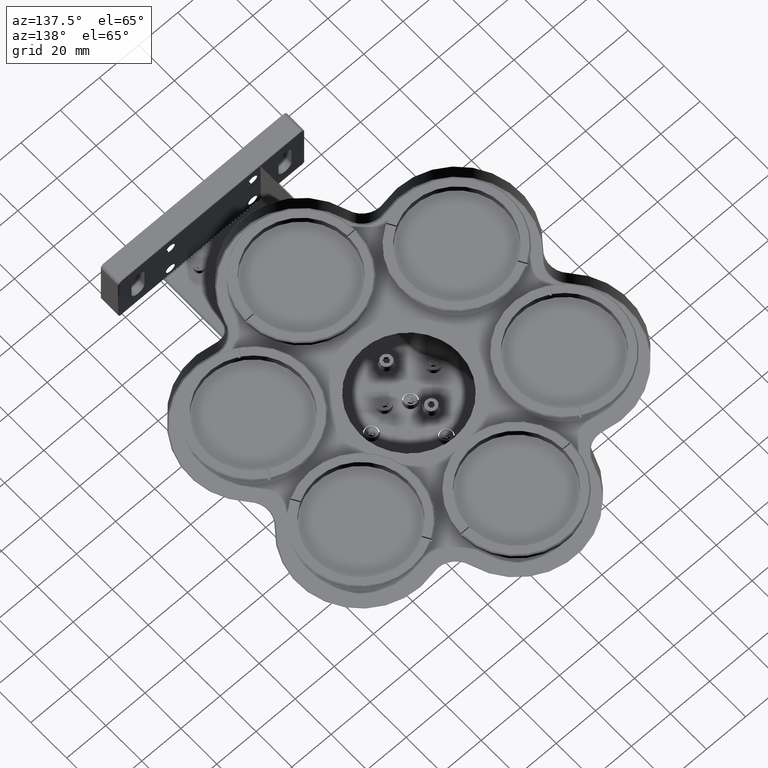
[diagram: clean part render]
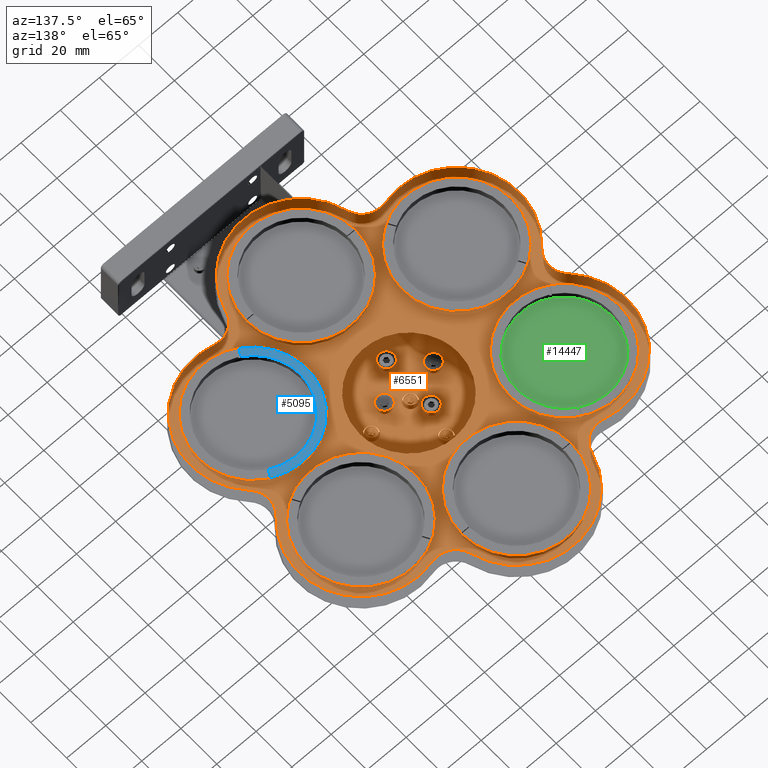
[diagram: same view with three faces highlighted in distinct colors, each labeled with its STEP entity id]
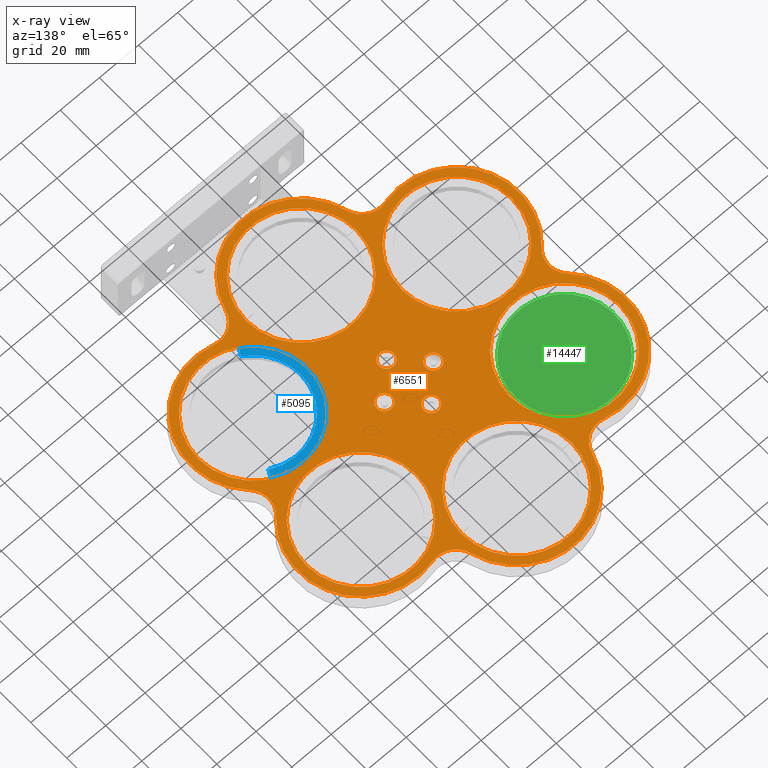
[diagram: x-ray of the same camera — body ghosted, the three highlighted faces saturated]
A machine part, auxiliary view with three faces highlighted in distinct colors.
The next image is the same camera in x-ray (body ghosted, the three faces saturated) — at least one of them is partly hidden behind the body in this view.
Their STEP definitions:

[orange] entity #6551 — the highlighted planar face has unit normal (0, 0, 1).
#42 = AXIS2_PLACEMENT_3D ( 'NONE', #10895, #4318, #2111 ) ;
#51 = CARTESIAN_POINT ( 'NONE',  ( -12.98181641387896867, 69.63146635550474173, 180.7499999999656666 ) ) ;
#234 = DIRECTION ( 'NONE',  ( -1.000000000000000000, 0.000000000000000000, 0.000000000000000000 ) ) ;
#235 = CIRCLE ( 'NONE', #2576, 32.00000000000002842 ) ;
#240 = ORIENTED_EDGE ( 'NONE', *, *, #9687, .F. ) ;
#310 = DIRECTION ( 'NONE',  ( 0.000000000000000000, 0.000000000000000000, -1.000000000000000000 ) ) ;
#457 = AXIS2_PLACEMENT_3D ( 'NONE', #7086, #11518, #11446 ) ;
#485 = VERTEX_POINT ( 'NONE', #625 ) ;
#549 = ORIENTED_EDGE ( 'NONE', *, *, #5991, .F. ) ;
#601 = CIRCLE ( 'NONE', #6709, 28.00000000000004619 ) ;
#625 = CARTESIAN_POINT ( 'NONE',  ( -0.4818164138221253667, 57.13146635550474173, 180.7500000000338787 ) ) ;
#692 = ORIENTED_EDGE ( 'NONE', *, *, #2051, .T. ) ;
#704 = ORIENTED_EDGE ( 'NONE', *, *, #8150, .F. ) ;
#722 = FACE_BOUND ( 'NONE', #5979, .T. ) ;
#748 = ORIENTED_EDGE ( 'NONE', *, *, #1298, .F. ) ;
#891 = EDGE_CURVE ( 'NONE', #12477, #3266, #12980, .T. ) ;
#909 = VERTEX_POINT ( 'NONE', #2414 ) ;
#953 = CIRCLE ( 'NONE', #6555, 3.749999999968167685 ) ;
#970 = AXIS2_PLACEMENT_3D ( 'NONE', #1318, #10306, #11188 ) ;
#1135 = VERTEX_POINT ( 'NONE', #11921 ) ;
#1165 = AXIS2_PLACEMENT_3D ( 'NONE', #10699, #13934, #6259 ) ;
#1211 = FACE_BOUND ( 'NONE', #2748, .T. ) ;
#1298 = EDGE_CURVE ( 'NONE', #5714, #5714, #3747, .T. ) ;
#1318 = CARTESIAN_POINT ( 'NONE',  ( -86.29732708789410367, 69.63146635550559438, 180.7499999999716351 ) ) ;
#1566 = EDGE_LOOP ( 'NONE', ( #11890 ) ) ;
#1741 = EDGE_LOOP ( 'NONE', ( #10160, #7980, #692, #5815, #1925, #3473, #3703, #549, #5237, #704, #6818, #7447 ) ) ;
#1824 = EDGE_CURVE ( 'NONE', #14439, #8394, #235, .T. ) ;
#1882 = CARTESIAN_POINT ( 'NONE',  ( -78.85987161275778590, 62.21970164962317540, 180.7499999999716351 ) ) ;
#1925 = ORIENTED_EDGE ( 'NONE', *, *, #1824, .T. ) ;
#2037 = FACE_BOUND ( 'NONE', #4427, .T. ) ;
#2051 = EDGE_CURVE ( 'NONE', #909, #6096, #13153, .T. ) ;
#2111 = DIRECTION ( 'NONE',  ( -1.000000000000000000, 0.000000000000000000, 0.000000000000000000 ) ) ;
#2117 = AXIS2_PLACEMENT_3D ( 'NONE', #6708, #2146, #13419 ) ;
#2146 = DIRECTION ( 'NONE',  ( -0.000000000000000000, 0.000000000000000000, -1.000000000000000000 ) ) ;
#2315 = VERTEX_POINT ( 'NONE', #13675 ) ;
#2355 = DIRECTION ( 'NONE',  ( -0.000000000000000000, 0.000000000000000000, -1.000000000000000000 ) ) ;
#2391 = DIRECTION ( 'NONE',  ( 1.000000000000000000, 0.000000000000000000, 0.000000000000000000 ) ) ;
#2414 = CARTESIAN_POINT ( 'NONE',  ( 39.50098770777523072, 130.5553756398474263, 180.7499999999716636 ) ) ;
#2485 = DIRECTION ( 'NONE',  ( -1.000000000000000000, 0.000000000000000000, 0.000000000000000000 ) ) ;
#2498 = DIRECTION ( 'NONE',  ( 1.000000000000000000, 0.000000000000000000, 0.000000000000000000 ) ) ;
#2516 = DIRECTION ( 'NONE',  ( 0.000000000000000000, 0.000000000000000000, -1.000000000000000000 ) ) ;
#2551 = CARTESIAN_POINT ( 'NONE',  ( -56.19334064091373193, 39.63146635550522490, 180.7499999999716351 ) ) ;
#2576 = AXIS2_PLACEMENT_3D ( 'NONE', #11379, #2516, #13509 ) ;
#2609 = VERTEX_POINT ( 'NONE', #11618 ) ;
#2742 = EDGE_CURVE ( 'NONE', #10146, #10146, #9887, .T. ) ;
#2748 = EDGE_LOOP ( 'NONE', ( #14375 ) ) ;
#2760 = VERTEX_POINT ( 'NONE', #8228 ) ;
#2795 = DIRECTION ( 'NONE',  ( -1.000000000000000000, 0.000000000000000000, 0.000000000000000000 ) ) ;
#2859 = DIRECTION ( 'NONE',  ( 1.000000000000000000, 1.321694076934714149E-15, 0.000000000000000000 ) ) ;
#2925 = FACE_BOUND ( 'NONE', #13767, .T. ) ;
#2995 = CARTESIAN_POINT ( 'NONE',  ( 26.66343466344120472, 137.9671403457298027, 180.7499999999716636 ) ) ;
#3052 = AXIS2_PLACEMENT_3D ( 'NONE', #8134, #12775, #13589 ) ;
#3265 = CIRCLE ( 'NONE', #4445, 3.750000000025011104 ) ;
#3266 = VERTEX_POINT ( 'NONE', #1882 ) ;
#3314 = EDGE_CURVE ( 'NONE', #12420, #12420, #953, .T. ) ;
#3323 = VERTEX_POINT ( 'NONE', #6380 ) ;
#3352 = DIRECTION ( 'NONE',  ( -0.000000000000000000, 0.000000000000000000, -1.000000000000000000 ) ) ;
#3429 = ORIENTED_EDGE ( 'NONE', *, *, #6638, .F. ) ;
#3473 = ORIENTED_EDGE ( 'NONE', *, *, #4516, .F. ) ;
#3703 = ORIENTED_EDGE ( 'NONE', *, *, #9426, .T. ) ;
#3714 = CARTESIAN_POINT ( 'NONE',  ( -28.19334064091308534, 99.63146635550535279, 180.7499999999716351 ) ) ;
#3747 = CIRCLE ( 'NONE', #11990, 28.00000000000001776 ) ;
#4090 = EDGE_CURVE ( 'NONE', #2315, #2315, #7760, .T. ) ;
#4171 = FACE_BOUND ( 'NONE', #1566, .T. ) ;
#4239 = CARTESIAN_POINT ( 'NONE',  ( -56.19334064091309955, 99.63146635550535279, 180.7499999999716351 ) ) ;
#4296 = VERTEX_POINT ( 'NONE', #8651 ) ;
#4318 = DIRECTION ( 'NONE',  ( 0.000000000000000000, 0.000000000000000000, -1.000000000000000000 ) ) ;
#4374 = EDGE_CURVE ( 'NONE', #1135, #10015, #8952, .T. ) ;
#4427 = EDGE_LOOP ( 'NONE', ( #5207 ) ) ;
#4445 = AXIS2_PLACEMENT_3D ( 'NONE', #11505, #2355, #2498 ) ;
#4516 = EDGE_CURVE ( 'NONE', #3323, #8394, #6581, .T. ) ;
#4657 = CARTESIAN_POINT ( 'NONE',  ( 23.76818358615290805, 9.631466355504741728, 180.7499999999716351 ) ) ;
#4673 = AXIS2_PLACEMENT_3D ( 'NONE', #5025, #12895, #2795 ) ;
#4814 = AXIS2_PLACEMENT_3D ( 'NONE', #11810, #9737, #8412 ) ;
#4936 = CARTESIAN_POINT ( 'NONE',  ( 39.50098770777513124, 8.707557071161664553, 180.7499999999716067 ) ) ;
#4977 = CIRCLE ( 'NONE', #970, 10.49999999999996803 ) ;
#4979 = CARTESIAN_POINT ( 'NONE',  ( 12.01818358617787474, 69.63146635550474173, 180.7500000000452474 ) ) ;
#5003 = ORIENTED_EDGE ( 'NONE', *, *, #7778, .F. ) ;
#5025 = CARTESIAN_POINT ( 'NONE',  ( -4.231816413847136360, 129.6314663555047275, 180.7499999999716351 ) ) ;
#5147 = DIRECTION ( 'NONE',  ( -0.000000000000000000, 0.000000000000000000, -1.000000000000000000 ) ) ;
#5207 = ORIENTED_EDGE ( 'NONE', *, *, #14169, .F. ) ;
#5215 = DIRECTION ( 'NONE',  ( 0.000000000000000000, 0.000000000000000000, 1.000000000000000000 ) ) ;
#5237 = ORIENTED_EDGE ( 'NONE', *, *, #891, .T. ) ;
#5386 = CIRCLE ( 'NONE', #4673, 32.00000000000003553 ) ;
#5409 = ORIENTED_EDGE ( 'NONE', *, *, #4090, .F. ) ;
#5435 = CARTESIAN_POINT ( 'NONE',  ( -56.19334064091309955, 99.63146635550535279, 180.7499999999716351 ) ) ;
#5714 = VERTEX_POINT ( 'NONE', #3714 ) ;
#5734 = CARTESIAN_POINT ( 'NONE',  ( -4.231816413847136360, 9.631466355504741728, 180.7499999999716351 ) ) ;
#5799 = DIRECTION ( 'NONE',  ( -0.000000000000000000, 0.000000000000000000, -1.000000000000000000 ) ) ;
#5815 = ORIENTED_EDGE ( 'NONE', *, *, #13178, .F. ) ;
#5835 = VERTEX_POINT ( 'NONE', #4657 ) ;
#5878 = AXIS2_PLACEMENT_3D ( 'NONE', #5435, #12148, #11111 ) ;
#5941 = CARTESIAN_POINT ( 'NONE',  ( -56.19334064091373193, 39.63146635550522490, 180.7499999999716351 ) ) ;
#5948 = DIRECTION ( 'NONE',  ( 0.000000000000000000, 0.000000000000000000, -1.000000000000000000 ) ) ;
#5979 = EDGE_LOOP ( 'NONE', ( #240 ) ) ;
#5991 = EDGE_CURVE ( 'NONE', #12477, #7626, #7755, .T. ) ;
#6096 = VERTEX_POINT ( 'NONE', #9519 ) ;
#6145 = VERTEX_POINT ( 'NONE', #4979 ) ;
#6259 = DIRECTION ( 'NONE',  ( 1.000000000000000000, -1.776026415881022187E-15, 0.000000000000000000 ) ) ;
#6305 = FACE_BOUND ( 'NONE', #11790, .T. ) ;
#6343 = CIRCLE ( 'NONE', #3052, 3.750000000025011104 ) ;
#6380 = CARTESIAN_POINT ( 'NONE',  ( 26.66343466344116209, 1.295792365279396785, 180.7499999999716351 ) ) ;
#6384 = CIRCLE ( 'NONE', #42, 32.00000000000004263 ) ;
#6388 = DIRECTION ( 'NONE',  ( 1.000000000000000000, 0.000000000000000000, -0.000000000000000000 ) ) ;
#6483 = ORIENTED_EDGE ( 'NONE', *, *, #2742, .F. ) ;
#6514 = VERTEX_POINT ( 'NONE', #2995 ) ;
#6525 = FACE_BOUND ( 'NONE', #11015, .T. ) ;
#6551 = ADVANCED_FACE ( 'NONE', ( #2037, #7481, #6525, #11030, #1211, #2925, #4171, #6305, #8608, #722, #10818 ), #8674, .F. ) ;
#6555 = AXIS2_PLACEMENT_3D ( 'NONE', #12063, #13083, #7627 ) ;
#6581 = CIRCLE ( 'NONE', #8476, 10.49999999999996803 ) ;
#6626 = AXIS2_PLACEMENT_3D ( 'NONE', #2551, #5948, #2485 ) ;
#6638 = EDGE_CURVE ( 'NONE', #6145, #6145, #6343, .T. ) ;
#6674 = DIRECTION ( 'NONE',  ( 1.000000000000000000, 0.000000000000000000, 0.000000000000000000 ) ) ;
#6708 = CARTESIAN_POINT ( 'NONE',  ( 47.72970781321905065, 39.63146635550449304, 180.7499999999716351 ) ) ;
#6709 = AXIS2_PLACEMENT_3D ( 'NONE', #5734, #9200, #7124 ) ;
#6740 = DIRECTION ( 'NONE',  ( -0.000000000000000000, -0.000000000000000000, -1.000000000000000000 ) ) ;
#6818 = ORIENTED_EDGE ( 'NONE', *, *, #4374, .T. ) ;
#6923 = CIRCLE ( 'NONE', #4814, 27.99999999999999645 ) ;
#6976 = DIRECTION ( 'NONE',  ( 1.000000000000000000, 0.000000000000000000, 0.000000000000000000 ) ) ;
#7011 = VERTEX_POINT ( 'NONE', #7972 ) ;
#7086 = CARTESIAN_POINT ( 'NONE',  ( 36.80093892317643167, 140.7022833737723886, 180.7499999999716636 ) ) ;
#7110 = EDGE_CURVE ( 'NONE', #2760, #6514, #5386, .T. ) ;
#7124 = DIRECTION ( 'NONE',  ( 1.000000000000000000, 0.000000000000000000, 0.000000000000000000 ) ) ;
#7161 = AXIS2_PLACEMENT_3D ( 'NONE', #7553, #10890, #8818 ) ;
#7245 = EDGE_CURVE ( 'NONE', #909, #6514, #7264, .T. ) ;
#7264 = CIRCLE ( 'NONE', #457, 10.49999999999998224 ) ;
#7292 = CARTESIAN_POINT ( 'NONE',  ( -47.96462053546925119, 130.5553756398481937, 180.7499999999716636 ) ) ;
#7415 = CIRCLE ( 'NONE', #7161, 10.49999999999996092 ) ;
#7447 = ORIENTED_EDGE ( 'NONE', *, *, #14519, .F. ) ;
#7481 = FACE_BOUND ( 'NONE', #13715, .T. ) ;
#7553 = CARTESIAN_POINT ( 'NONE',  ( -45.26457175087048768, 140.7022833737731560, 180.7499999999716351 ) ) ;
#7626 = VERTEX_POINT ( 'NONE', #12099 ) ;
#7627 = DIRECTION ( 'NONE',  ( 1.000000000000000000, 0.000000000000000000, 0.000000000000000000 ) ) ;
#7755 = CIRCLE ( 'NONE', #1165, 10.49999999999996803 ) ;
#7760 = CIRCLE ( 'NONE', #2117, 28.00000000000007461 ) ;
#7778 = EDGE_CURVE ( 'NONE', #485, #485, #3265, .T. ) ;
#7816 = AXIS2_PLACEMENT_3D ( 'NONE', #10567, #6740, #6674 ) ;
#7912 = DIRECTION ( 'NONE',  ( -0.000000000000000000, 0.000000000000000000, -1.000000000000000000 ) ) ;
#7972 = CARTESIAN_POINT ( 'NONE',  ( -0.4818164138221253667, 82.13146635550474173, 180.7500000000338787 ) ) ;
#7980 = ORIENTED_EDGE ( 'NONE', *, *, #7245, .F. ) ;
#8134 = CARTESIAN_POINT ( 'NONE',  ( 8.268183586152863640, 69.63146635550474173, 180.7500000000452474 ) ) ;
#8150 = EDGE_CURVE ( 'NONE', #1135, #3266, #4977, .T. ) ;
#8228 = CARTESIAN_POINT ( 'NONE',  ( -35.12706749113534954, 137.9671403457303711, 180.7499999999716636 ) ) ;
#8394 = VERTEX_POINT ( 'NONE', #4936 ) ;
#8412 = DIRECTION ( 'NONE',  ( 1.000000000000000000, 0.000000000000000000, 0.000000000000000000 ) ) ;
#8476 = AXIS2_PLACEMENT_3D ( 'NONE', #10156, #9264, #13686 ) ;
#8608 = FACE_BOUND ( 'NONE', #9408, .T. ) ;
#8651 = CARTESIAN_POINT ( 'NONE',  ( 75.72970781321924960, 99.63146635550461383, 180.7499999999716351 ) ) ;
#8674 = PLANE ( 'NONE',  #11299 ) ;
#8747 = DIRECTION ( 'NONE',  ( 1.000000000000000000, 0.000000000000000000, 0.000000000000000000 ) ) ;
#8818 = DIRECTION ( 'NONE',  ( 1.000000000000000000, 0.000000000000000000, 0.000000000000000000 ) ) ;
#8821 = AXIS2_PLACEMENT_3D ( 'NONE', #11722, #5147, #2859 ) ;
#8952 = CIRCLE ( 'NONE', #5878, 32.00000000000003553 ) ;
#9006 = CIRCLE ( 'NONE', #7816, 28.00000000000005329 ) ;
#9200 = DIRECTION ( 'NONE',  ( -0.000000000000000000, 0.000000000000000000, -1.000000000000000000 ) ) ;
#9264 = DIRECTION ( 'NONE',  ( -0.000000000000000000, -0.000000000000000000, -1.000000000000000000 ) ) ;
#9408 = EDGE_LOOP ( 'NONE', ( #3429 ) ) ;
#9426 = EDGE_CURVE ( 'NONE', #3323, #7626, #6384, .T. ) ;
#9519 = CARTESIAN_POINT ( 'NONE',  ( 70.39623878506348831, 77.04323106138680544, 180.7499999999716351 ) ) ;
#9687 = EDGE_CURVE ( 'NONE', #2609, #2609, #9006, .T. ) ;
#9709 = EDGE_LOOP ( 'NONE', ( #748 ) ) ;
#9737 = DIRECTION ( 'NONE',  ( -0.000000000000000000, 0.000000000000000000, -1.000000000000000000 ) ) ;
#9780 = CIRCLE ( 'NONE', #14015, 3.750000000025011104 ) ;
#9844 = CARTESIAN_POINT ( 'NONE',  ( 70.39623878506340304, 62.21970164962210958, 180.7499999999716067 ) ) ;
#9887 = CIRCLE ( 'NONE', #12713, 27.99999999999999645 ) ;
#10015 = VERTEX_POINT ( 'NONE', #7292 ) ;
#10146 = VERTEX_POINT ( 'NONE', #13525 ) ;
#10156 = CARTESIAN_POINT ( 'NONE',  ( 36.80093892317633220, -1.439350662763280830, 180.7499999999716351 ) ) ;
#10160 = ORIENTED_EDGE ( 'NONE', *, *, #7110, .T. ) ;
#10306 = DIRECTION ( 'NONE',  ( -0.000000000000000000, 0.000000000000000000, -1.000000000000000000 ) ) ;
#10567 = CARTESIAN_POINT ( 'NONE',  ( -4.231816413847138136, 129.6314663555047275, 180.7499999999716351 ) ) ;
#10699 = CARTESIAN_POINT ( 'NONE',  ( -45.26457175087080742, -1.439350662762517441, 180.7499999999716351 ) ) ;
#10818 = FACE_OUTER_BOUND ( 'NONE', #1741, .T. ) ;
#10890 = DIRECTION ( 'NONE',  ( -0.000000000000000000, 0.000000000000000000, -1.000000000000000000 ) ) ;
#10895 = CARTESIAN_POINT ( 'NONE',  ( -4.231816413847136360, 9.631466355504741728, 180.7499999999716351 ) ) ;
#10934 = CARTESIAN_POINT ( 'NONE',  ( -47.96462053546964199, 8.707557071162407070, 180.7499999999716067 ) ) ;
#11015 = EDGE_LOOP ( 'NONE', ( #6483 ) ) ;
#11030 = FACE_BOUND ( 'NONE', #9709, .T. ) ;
#11111 = DIRECTION ( 'NONE',  ( -1.000000000000000000, 0.000000000000000000, 0.000000000000000000 ) ) ;
#11188 = DIRECTION ( 'NONE',  ( 1.000000000000000000, -6.608470384673570745E-15, 0.000000000000000000 ) ) ;
#11299 = AXIS2_PLACEMENT_3D ( 'NONE', #11998, #5215, #6388 ) ;
#11314 = CARTESIAN_POINT ( 'NONE',  ( -4.231816413847136360, 82.13146635550474173, 180.7500000000338787 ) ) ;
#11379 = CARTESIAN_POINT ( 'NONE',  ( 47.72970781321905065, 39.63146635550449304, 180.7499999999716067 ) ) ;
#11446 = DIRECTION ( 'NONE',  ( 1.000000000000000000, 0.000000000000000000, 0.000000000000000000 ) ) ;
#11505 = CARTESIAN_POINT ( 'NONE',  ( -4.231816413847136360, 57.13146635550474173, 180.7500000000338787 ) ) ;
#11518 = DIRECTION ( 'NONE',  ( -0.000000000000000000, -0.000000000000000000, -1.000000000000000000 ) ) ;
#11618 = CARTESIAN_POINT ( 'NONE',  ( 23.76818358615291515, 129.6314663555047275, 180.7499999999716351 ) ) ;
#11722 = CARTESIAN_POINT ( 'NONE',  ( 77.83369426019984871, 69.63146635550442909, 180.7499999999716351 ) ) ;
#11790 = EDGE_LOOP ( 'NONE', ( #5003 ) ) ;
#11810 = CARTESIAN_POINT ( 'NONE',  ( 47.72970781321924960, 99.63146635550461383, 180.7499999999716351 ) ) ;
#11890 = ORIENTED_EDGE ( 'NONE', *, *, #13731, .F. ) ;
#11921 = CARTESIAN_POINT ( 'NONE',  ( -78.85987161275764379, 77.04323106138785704, 180.7499999999716351 ) ) ;
#11990 = AXIS2_PLACEMENT_3D ( 'NONE', #4239, #3352, #8747 ) ;
#11998 = CARTESIAN_POINT ( 'NONE',  ( -4.231816413847136360, 69.63146635550474173, 180.7499999999716351 ) ) ;
#12063 = CARTESIAN_POINT ( 'NONE',  ( -16.73181641384713814, 69.63146635550474173, 180.7499999999656666 ) ) ;
#12099 = CARTESIAN_POINT ( 'NONE',  ( -35.12706749113557692, 1.295792365279966329, 180.7499999999716351 ) ) ;
#12148 = DIRECTION ( 'NONE',  ( 0.000000000000000000, 0.000000000000000000, -1.000000000000000000 ) ) ;
#12420 = VERTEX_POINT ( 'NONE', #51 ) ;
#12477 = VERTEX_POINT ( 'NONE', #10934 ) ;
#12713 = AXIS2_PLACEMENT_3D ( 'NONE', #5941, #5799, #6976 ) ;
#12775 = DIRECTION ( 'NONE',  ( -0.000000000000000000, -0.000000000000000000, -1.000000000000000000 ) ) ;
#12883 = EDGE_CURVE ( 'NONE', #4296, #4296, #6923, .T. ) ;
#12895 = DIRECTION ( 'NONE',  ( 0.000000000000000000, 0.000000000000000000, -1.000000000000000000 ) ) ;
#12980 = CIRCLE ( 'NONE', #6626, 32.00000000000004263 ) ;
#13083 = DIRECTION ( 'NONE',  ( -0.000000000000000000, 0.000000000000000000, -1.000000000000000000 ) ) ;
#13153 = CIRCLE ( 'NONE', #13401, 32.00000000000003553 ) ;
#13178 = EDGE_CURVE ( 'NONE', #14439, #6096, #13528, .T. ) ;
#13401 = AXIS2_PLACEMENT_3D ( 'NONE', #13783, #310, #234 ) ;
#13419 = DIRECTION ( 'NONE',  ( 1.000000000000000000, 0.000000000000000000, 0.000000000000000000 ) ) ;
#13471 = ORIENTED_EDGE ( 'NONE', *, *, #3314, .F. ) ;
#13509 = DIRECTION ( 'NONE',  ( -1.000000000000000000, 0.000000000000000000, 0.000000000000000000 ) ) ;
#13525 = CARTESIAN_POINT ( 'NONE',  ( -28.19334064091373548, 39.63146635550522490, 180.7499999999716351 ) ) ;
#13528 = CIRCLE ( 'NONE', #8821, 10.49999999999996803 ) ;
#13589 = DIRECTION ( 'NONE',  ( 1.000000000000000000, 0.000000000000000000, 0.000000000000000000 ) ) ;
#13675 = CARTESIAN_POINT ( 'NONE',  ( 75.72970781321912170, 39.63146635550449304, 180.7499999999716351 ) ) ;
#13686 = DIRECTION ( 'NONE',  ( 1.000000000000000000, 0.000000000000000000, 0.000000000000000000 ) ) ;
#13715 = EDGE_LOOP ( 'NONE', ( #5409 ) ) ;
#13731 = EDGE_CURVE ( 'NONE', #7011, #7011, #9780, .T. ) ;
#13767 = EDGE_LOOP ( 'NONE', ( #13471 ) ) ;
#13783 = CARTESIAN_POINT ( 'NONE',  ( 47.72970781321924960, 99.63146635550461383, 180.7499999999716351 ) ) ;
#13934 = DIRECTION ( 'NONE',  ( -0.000000000000000000, 0.000000000000000000, -1.000000000000000000 ) ) ;
#14015 = AXIS2_PLACEMENT_3D ( 'NONE', #11314, #7912, #2391 ) ;
#14169 = EDGE_CURVE ( 'NONE', #5835, #5835, #601, .T. ) ;
#14375 = ORIENTED_EDGE ( 'NONE', *, *, #12883, .F. ) ;
#14439 = VERTEX_POINT ( 'NONE', #9844 ) ;
#14519 = EDGE_CURVE ( 'NONE', #2760, #10015, #7415, .T. ) ;

[blue] entity #5095 — the highlighted planar face has unit normal (0, 0, 1).
#305 = PLANE ( 'NONE',  #8003 ) ;
#541 = AXIS2_PLACEMENT_3D ( 'NONE', #5337, #7764, #13296 ) ;
#1494 = CIRCLE ( 'NONE', #541, 27.50000000000001066 ) ;
#2118 = LINE ( 'NONE', #14485, #4440 ) ;
#2274 = EDGE_CURVE ( 'NONE', #2344, #12407, #14003, .T. ) ;
#2344 = VERTEX_POINT ( 'NONE', #6115 ) ;
#2402 = CARTESIAN_POINT ( 'NONE',  ( 35.29929956062491669, 19.10136770318818478, 180.7499999999716351 ) ) ;
#4176 = DIRECTION ( 'NONE',  ( 0.5000000000000032196, 0.8660254037844367092, 0.000000000000000000 ) ) ;
#4440 = VECTOR ( 'NONE', #4176, 1000.000000000000227 ) ;
#4559 = VERTEX_POINT ( 'NONE', #6972 ) ;
#5095 = ADVANCED_FACE ( 'NONE', ( #12667 ), #305, .T. ) ;
#5145 = DIRECTION ( 'NONE',  ( 0.000000000000000000, 0.000000000000000000, -1.000000000000000000 ) ) ;
#5337 = CARTESIAN_POINT ( 'NONE',  ( 47.72970781321905775, 39.63146635550449304, 180.7499999999716351 ) ) ;
#5447 = EDGE_CURVE ( 'NONE', #4559, #8628, #2118, .T. ) ;
#5795 = CARTESIAN_POINT ( 'NONE',  ( 61.04442219619447485, 63.69322815508576952, 180.7499999999716351 ) ) ;
#6115 = CARTESIAN_POINT ( 'NONE',  ( 33.54896802645920673, 16.06970455592323077, 180.7499999999716351 ) ) ;
#6796 = EDGE_LOOP ( 'NONE', ( #13606, #12506, #14521, #9371 ) ) ;
#6972 = CARTESIAN_POINT ( 'NONE',  ( 59.29409066202877199, 60.66156500782079775, 180.7499999999716351 ) ) ;
#7068 = DIRECTION ( 'NONE',  ( 1.000000000000000000, 0.000000000000000000, -0.000000000000000000 ) ) ;
#7764 = DIRECTION ( 'NONE',  ( -2.478176394252599876E-16, -4.292327424963297995E-16, 1.000000000000000000 ) ) ;
#8003 = AXIS2_PLACEMENT_3D ( 'NONE', #10478, #8175, #7068 ) ;
#8175 = DIRECTION ( 'NONE',  ( 0.000000000000000000, 0.000000000000000000, 1.000000000000000000 ) ) ;
#8404 = EDGE_CURVE ( 'NONE', #12407, #4559, #13197, .T. ) ;
#8628 = VERTEX_POINT ( 'NONE', #5795 ) ;
#9371 = ORIENTED_EDGE ( 'NONE', *, *, #2274, .T. ) ;
#9578 = DIRECTION ( 'NONE',  ( -1.000000000000000000, 0.000000000000000000, 0.000000000000000000 ) ) ;
#10122 = VECTOR ( 'NONE', #10696, 1000.000000000000227 ) ;
#10149 = AXIS2_PLACEMENT_3D ( 'NONE', #11793, #5145, #9578 ) ;
#10478 = CARTESIAN_POINT ( 'NONE',  ( 47.72970781321905775, 39.63146635550449304, 180.7499999999716351 ) ) ;
#10548 = CARTESIAN_POINT ( 'NONE',  ( 33.54896802645919962, 16.06970455592322722, 180.7499999999716351 ) ) ;
#10696 = DIRECTION ( 'NONE',  ( 0.5000000000000055511, 0.8660254037844354880, 0.000000000000000000 ) ) ;
#10758 = EDGE_CURVE ( 'NONE', #8628, #2344, #1494, .T. ) ;
#11793 = CARTESIAN_POINT ( 'NONE',  ( 47.72970781321905775, 39.63146635550449304, 180.7499999999716351 ) ) ;
#12407 = VERTEX_POINT ( 'NONE', #2402 ) ;
#12506 = ORIENTED_EDGE ( 'NONE', *, *, #5447, .T. ) ;
#12667 = FACE_OUTER_BOUND ( 'NONE', #6796, .T. ) ;
#13197 = CIRCLE ( 'NONE', #10149, 24.00000000000000355 ) ;
#13296 = DIRECTION ( 'NONE',  ( 0.000000000000000000, 1.000000000000000000, 0.000000000000000000 ) ) ;
#13606 = ORIENTED_EDGE ( 'NONE', *, *, #8404, .T. ) ;
#14003 = LINE ( 'NONE', #10548, #10122 ) ;
#14485 = CARTESIAN_POINT ( 'NONE',  ( 59.29409066202876488, 60.66156500782079775, 180.7499999999716351 ) ) ;
#14521 = ORIENTED_EDGE ( 'NONE', *, *, #10758, .T. ) ;

[green] entity #14447 — the highlighted planar face has unit normal (0, -0, 1).
#68 = CARTESIAN_POINT ( 'NONE',  ( -60.26072324920910006, 74.55886074120651585, 176.7499999999716636 ) ) ;
#197 = B_SPLINE_CURVE_WITH_KNOTS ( 'NONE', 3,
 ( #6829, #13319, #5802, #4623, #4474, #2262, #12215, #2194, #14420, #6750, #9123, #8981, #13472, #4329, #68, #1158, #4548, #9054, #2124, #6612, #11116, #5513, #9346, #11487, #2482, #3587, #1380, #7196, #1533, #11561, #3661, #7123, #8380, #10601, #13906, #1460, #9197, #5944, #1673, #2767, #5870, #6978, #10381, #3879, #12650, #2628, #11635, #12727, #10305, #4846, #11777, #9416, #6089, #10457, #9271, #4918, #284, #13761, #13692, #13977, #13833, #12869, #7259, #8310, #8087, #208, #4774, #8160, #3810, #4691, #12587, #2700, #2548, #3732, #7047, #359, #8231, #6020, #1598, #10529, #430, #12800, #11707, #503, #4997, #9492, #5208, #713, #2916, #13148, #9562, #2987, #7407, #2843, #573, #14117, #9843, #10742, #12134, #5344, #9777, #14254, #11919, #5065, #1807, #6163, #13228, #1743, #14321, #3132 ),
 .UNSPECIFIED., .F., .F.,
 ( 4, 1, 1, 1, 1, 1, 2, 2, 1, 1, 1, 1, 2, 2, 1, 1, 1, 1, 2, 2, 2, 1, 1, 1, 1, 2, 2, 1, 1, 1, 1, 2, 2, 1, 1, 1, 1, 1, 2, 2, 2, 1, 1, 1, 1, 1, 2, 2, 1, 1, 1, 1, 2, 2, 1, 1, 1, 1, 2, 2, 2, 1, 1, 1, 1, 2, 2, 1, 1, 1, 1, 2, 2, 1, 1, 1, 1, 1, 2, 2, 4 ),
 ( 0.000000000000000000, 0.03124999999998766265, 0.04687499999998163275, 0.05468749999997871841, 0.05859374999997762901, 0.06054687499997734451, 0.06152343749997730288, 0.06249999999997725431, 0.09374999999998469280, 0.1093749999999883427, 0.1171874999999901190, 0.1210937499999909656, 0.1230468749999912570, 0.1249999999999915345, 0.1562499999999972522, 0.1718750000000001388, 0.1796875000000015821, 0.1835937500000021927, 0.1855468750000023592, 0.1875000000000025258, 0.2500000000000042744, 0.2812500000000053291, 0.2968750000000058842, 0.3046875000000062172, 0.3085937500000063838, 0.3105468750000063838, 0.3125000000000063838, 0.3437500000000015543, 0.3593749999999991118, 0.3671874999999978351, 0.3710937499999970579, 0.3730468749999967804, 0.3749999999999965028, 0.4062499999999880651, 0.4218749999999837352, 0.4296874999999815703, 0.4335937499999802935, 0.4355468749999797384, 0.4365234374999793499, 0.4374999999999789613, 0.4999999999999557021, 0.5312499999999438227, 0.5468749999999374944, 0.5546874999999347189, 0.5585937499999332756, 0.5605468749999327205, 0.5615234374999327205, 0.5624999999999328315, 0.5937499999999303890, 0.6093749999999290567, 0.6171874999999283906, 0.6210937499999278355, 0.6230468749999278355, 0.6249999999999278355, 0.6562499999999293898, 0.6718749999999301670, 0.6796874999999307221, 0.6835937499999312772, 0.6855468749999318323, 0.6874999999999323874, 0.7499999999999499289, 0.7812499999999584777, 0.7968749999999624745, 0.8046874999999645839, 0.8085937499999653610, 0.8105468749999654721, 0.8124999999999655831, 0.8437499999999730216, 0.8593749999999764633, 0.8671874999999782396, 0.8710937499999791278, 0.8730468749999796829, 0.8749999999999802380, 0.9062499999999900080, 0.9218749999999946709, 0.9296874999999971134, 0.9335937499999983347, 0.9355468749999988898, 0.9365234374999990008, 0.9374999999999990008, 1.000000000000000000 ),
 .UNSPECIFIED. ) ;
#208 = CARTESIAN_POINT ( 'NONE',  ( -31.62275774935480044, 93.10133849979378340, 176.7499999999716351 ) ) ;
#219 = CARTESIAN_POINT ( 'NONE',  ( -56.85089552440199867, 125.0246008295578832, 176.7499999999716351 ) ) ;
#284 = CARTESIAN_POINT ( 'NONE',  ( -33.27376789564701198, 88.63528499524231563, 176.7499999999716920 ) ) ;
#298 = CARTESIAN_POINT ( 'NONE',  ( -81.59970094224166814, 99.72260951448620858, 176.7499999999716351 ) ) ;
#359 = CARTESIAN_POINT ( 'NONE',  ( -30.80020616686232060, 100.2890212389796716, 176.7499999999716920 ) ) ;
#371 = CARTESIAN_POINT ( 'NONE',  ( -61.07392478375654576, 124.6196942806058559, 176.7499999999716067 ) ) ;
#430 = CARTESIAN_POINT ( 'NONE',  ( -30.92943589578883490, 102.7890776971988913, 176.7499999999716920 ) ) ;
#439 = CARTESIAN_POINT ( 'NONE',  ( -75.27667717683429771, 116.3946823878721943, 176.7499999999716920 ) ) ;
#503 = CARTESIAN_POINT ( 'NONE',  ( -32.28928200909930268, 108.2981948194876338, 176.7499999999716636 ) ) ;
#513 = CARTESIAN_POINT ( 'NONE',  ( -78.88438361857423331, 88.21746669689093778, 176.7499999999716067 ) ) ;
#573 = CARTESIAN_POINT ( 'NONE',  ( -36.05672217214927144, 115.1136331431377613, 176.7499999999716636 ) ) ;
#584 = CARTESIAN_POINT ( 'NONE',  ( -67.60734029953387392, 122.3225093331625146, 176.7499999999716636 ) ) ;
#673 = VERTEX_POINT ( 'NONE', #9799 ) ;
#713 = CARTESIAN_POINT ( 'NONE',  ( -33.42839876944378119, 110.8973732186064467, 176.7499999999716351 ) ) ;
#867 = CARTESIAN_POINT ( 'NONE',  ( -76.32995910971810360, 84.14929956793645260, 176.7499999999716636 ) ) ;
#1102 = CARTESIAN_POINT ( 'NONE',  ( -52.38017798178516671, 124.7436628423988623, 176.7499999999716351 ) ) ;
#1158 = CARTESIAN_POINT ( 'NONE',  ( -60.10823677706814294, 74.53492487838980196, 176.7499999999716920 ) ) ;
#1251 = CARTESIAN_POINT ( 'NONE',  ( -48.48426862901194312, 123.8473570105789463, 176.7499999999716920 ) ) ;
#1380 = CARTESIAN_POINT ( 'NONE',  ( -53.03572929916989409, 74.36756161038948676, 176.7499999999717204 ) ) ;
#1391 = CARTESIAN_POINT ( 'NONE',  ( -71.80247670711744945, 119.6693793592065020, 176.7499999999716920 ) ) ;
#1460 = CARTESIAN_POINT ( 'NONE',  ( -44.77934098229882665, 76.94042337784415508, 176.7499999999716636 ) ) ;
#1473 = CARTESIAN_POINT ( 'NONE',  ( -81.58647511497073879, 98.97391147195325800, 176.7499999999716636 ) ) ;
#1533 = CARTESIAN_POINT ( 'NONE',  ( -48.77262709388332951, 75.32380633645429668, 176.7499999999716920 ) ) ;
#1542 = CARTESIAN_POINT ( 'NONE',  ( -81.07618115616021726, 104.7606808425423282, 176.7499999999716920 ) ) ;
#1598 = CARTESIAN_POINT ( 'NONE',  ( -30.82657456256866269, 100.9314790203292773, 176.7499999999717204 ) ) ;
#1607 = CARTESIAN_POINT ( 'NONE',  ( -79.03099272123549213, 88.51285635436637733, 176.7499999999716920 ) ) ;
#1673 = CARTESIAN_POINT ( 'NONE',  ( -41.61331295861464952, 78.82487411136291655, 176.7499999999716636 ) ) ;
#1682 = CARTESIAN_POINT ( 'NONE',  ( -81.30553712780744036, 103.4446290146323832, 176.7499999999716636 ) ) ;
#1743 = CARTESIAN_POINT ( 'NONE',  ( -40.88419677081756021, 119.9589072218870172, 176.7499999999716636 ) ) ;
#1752 = CARTESIAN_POINT ( 'NONE',  ( -72.76215977021526271, 80.37958638818635393, 176.7499999999716636 ) ) ;
#1807 = CARTESIAN_POINT ( 'NONE',  ( -39.62452151162460012, 118.8833463228381930, 176.7499999999717204 ) ) ;
#1969 = CARTESIAN_POINT ( 'NONE',  ( -76.99993288505562816, 85.05143867320852280, 176.7499999999717488 ) ) ;
#2124 = CARTESIAN_POINT ( 'NONE',  ( -59.05570019460687803, 74.37865983159362315, 176.7499999999716636 ) ) ;
#2194 = CARTESIAN_POINT ( 'NONE',  ( -64.77012703792095749, 75.72332346490313171, 176.7499999999716920 ) ) ;
#2262 = CARTESIAN_POINT ( 'NONE',  ( -64.99821115312551001, 75.80603557856099428, 176.7499999999717488 ) ) ;
#2482 = CARTESIAN_POINT ( 'NONE',  ( -54.89332797608382464, 74.26470027716085553, 176.7499999999717204 ) ) ;
#2490 = CARTESIAN_POINT ( 'NONE',  ( -57.22558271741418423, 125.0108941761702539, 176.7499999999717204 ) ) ;
#2548 = CARTESIAN_POINT ( 'NONE',  ( -30.94053411700181044, 96.76910680176823121, 176.7499999999716920 ) ) ;
#2560 = CARTESIAN_POINT ( 'NONE',  ( -80.01875920552498656, 108.4363713216674086, 176.7499999999716636 ) ) ;
#2621 = B_SPLINE_CURVE_WITH_KNOTS ( 'NONE', 3,
 ( #7042, #5186, #9677, #11997, #13238, #12141, #4633, #3449, #13404, #4709, #1251, #14501, #5813, #3599, #7804, #12311, #1102, #12597, #3381, #3526, #8024, #219, #2490, #7874, #11129, #5594, #6762, #371, #3669, #11646, #5075, #14057, #2713, #10537, #3955, #584, #9573, #10394, #11497, #10468, #7271, #1391, #8169, #6175, #9284, #3891, #13772, #3821, #439, #3742, #8461, #12660, #12877, #4930, #10682, #9430, #11788, #13917, #7061, #2560, #4855, #12950, #9355, #11572, #5007, #2775, #1542, #8392, #5956, #6987, #1682, #5882, #7204, #13841, #298, #1473, #12738, #6029, #8246, #4783, #2639, #7133, #9503, #8320, #12810, #11716, #1607, #6099, #10613, #513, #13989, #4106, #1969, #5140, #867, #10750, #6528, #8537, #14129, #6462, #11860, #5356, #4173, #7417, #1752, #7562, #5287, #11032, #14196, #2997 ),
 .UNSPECIFIED., .F., .F.,
 ( 4, 1, 1, 1, 1, 1, 2, 2, 1, 1, 1, 1, 2, 2, 1, 1, 1, 1, 2, 2, 2, 1, 1, 1, 1, 2, 2, 1, 1, 1, 1, 2, 2, 1, 1, 1, 1, 1, 2, 2, 2, 1, 1, 1, 1, 1, 2, 2, 1, 1, 1, 1, 2, 2, 1, 1, 1, 1, 2, 2, 2, 1, 1, 1, 1, 2, 2, 1, 1, 1, 1, 2, 2, 1, 1, 1, 1, 1, 2, 2, 4 ),
 ( 0.000000000000000000, 0.03125000000001489781, 0.04687500000002234324, 0.05468750000002617351, 0.05859375000002796374, 0.06054687500002885192, 0.06152343750002929601, 0.06250000000002974010, 0.09375000000004102274, 0.1093750000000468653, 0.1171875000000496131, 0.1210937500000508482, 0.1230468750000514311, 0.1250000000000520139, 0.1562500000000608680, 0.1718750000000652811, 0.1796875000000675016, 0.1835937500000686118, 0.1855468750000690559, 0.1875000000000694445, 0.2500000000000798250, 0.2812500000000850431, 0.2968750000000874856, 0.3046875000000888734, 0.3085937500000896505, 0.3105468750000902056, 0.3125000000000907607, 0.3437500000001038059, 0.3593750000001100786, 0.3671875000001132427, 0.3710937500001150746, 0.3730468750001161848, 0.3750000000001172396, 0.4062500000001340594, 0.4218750000001424416, 0.4296875000001466050, 0.4335937500001485478, 0.4355468750001491030, 0.4365234375001492695, 0.4375000000001493805, 0.5000000000001594280, 0.5312500000001645351, 0.5468750000001674216, 0.5546875000001691980, 0.5585937500001700862, 0.5605468750001708633, 0.5615234375001711964, 0.5625000000001715295, 0.5937500000001707523, 0.6093750000001706413, 0.6171875000001701972, 0.6210937500001698641, 0.6230468750001694200, 0.6250000000001690870, 0.6562500000001556533, 0.6718750000001489919, 0.6796875000001456613, 0.6835937500001438849, 0.6855468750001431077, 0.6875000000001422196, 0.7500000000001204592, 0.7812500000001099121, 0.7968750000001048051, 0.8046875000001022515, 0.8085937500001009193, 0.8105468750001002531, 0.8125000000000996980, 0.8437500000000833777, 0.8593750000000753841, 0.8671875000000717204, 0.8710937500000699441, 0.8730468750000689448, 0.8750000000000678346, 0.9062500000000500711, 0.9218750000000415223, 0.9296875000000369704, 0.9335937500000347500, 0.9355468750000335287, 0.9365234375000330846, 0.9375000000000327516, 1.000000000000000000 ),
 .UNSPECIFIED. ) ;
#2628 = CARTESIAN_POINT ( 'NONE',  ( -38.84341559793969623, 81.04824332693031863, 176.7499999999716920 ) ) ;
#2639 = CARTESIAN_POINT ( 'NONE',  ( -81.45724538599850462, 96.47385501364860261, 176.7499999999716351 ) ) ;
#2700 = CARTESIAN_POINT ( 'NONE',  ( -31.07378051585362400, 95.86709117397330715, 176.7499999999716636 ) ) ;
#2713 = CARTESIAN_POINT ( 'NONE',  ( -67.31195064203230061, 122.4691184358330105, 176.7499999999716920 ) ) ;
#2767 = CARTESIAN_POINT ( 'NONE',  ( -41.00934323992899522, 79.26753006054113371, 176.7499999999716636 ) ) ;
#2775 = CARTESIAN_POINT ( 'NONE',  ( -80.76392353249488565, 106.1615942111261717, 176.7499999999715783 ) ) ;
#2843 = CARTESIAN_POINT ( 'NONE',  ( -35.82940434602570434, 114.8154637566071727, 176.7499999999716920 ) ) ;
#2916 = CARTESIAN_POINT ( 'NONE',  ( -33.47720202030988190, 110.9954458672592921, 176.7499999999716351 ) ) ;
#2987 = CARTESIAN_POINT ( 'NONE',  ( -34.54935531115058467, 112.9730308186408791, 176.7499999999716636 ) ) ;
#2997 = CARTESIAN_POINT ( 'NONE',  ( -68.89334064091335108, 77.63442109938073088, 176.7499999999716636 ) ) ;
#3132 = CARTESIAN_POINT ( 'NONE',  ( -43.49334064091284091, 121.6285116116299037, 176.7499999999716636 ) ) ;
#3238 = EDGE_CURVE ( 'NONE', #673, #8855, #197, .T. ) ;
#3351 = DIRECTION ( 'NONE',  ( 1.000000000000000000, 0.000000000000000000, -0.000000000000000000 ) ) ;
#3381 = CARTESIAN_POINT ( 'NONE',  ( -53.33098108719495656, 124.8842728794189867, 176.7499999999716636 ) ) ;
#3449 = CARTESIAN_POINT ( 'NONE',  ( -47.61655424391282310, 123.5396092461119366, 176.7499999999716636 ) ) ;
#3526 = CARTESIAN_POINT ( 'NONE',  ( -54.60750677045290047, 125.0075283933282151, 176.7499999999716351 ) ) ;
#3587 = CARTESIAN_POINT ( 'NONE',  ( -54.84088769309740030, 74.26744037111639329, 176.7499999999716351 ) ) ;
#3599 = CARTESIAN_POINT ( 'NONE',  ( -51.77095246806219819, 124.6450481861835584, 176.7499999999716636 ) ) ;
#3661 = CARTESIAN_POINT ( 'NONE',  ( -46.11501523182135287, 76.30908151850994159, 176.7499999999716351 ) ) ;
#3669 = CARTESIAN_POINT ( 'NONE',  ( -63.61405418789700406, 123.9391263745687013, 176.7499999999717204 ) ) ;
#3732 = CARTESIAN_POINT ( 'NONE',  ( -30.81727860309433709, 98.04563248501186479, 176.7499999999716351 ) ) ;
#3742 = CARTESIAN_POINT ( 'NONE',  ( -75.39482752166810542, 116.2587815654093788, 176.7499999999716636 ) ) ;
#3810 = CARTESIAN_POINT ( 'NONE',  ( -31.12073502661663227, 95.56408374720948018, 176.7499999999716636 ) ) ;
#3821 = CARTESIAN_POINT ( 'NONE',  ( -75.03811058244635035, 116.6641239037038247, 176.7499999999716636 ) ) ;
#3879 = CARTESIAN_POINT ( 'NONE',  ( -40.45588727035381282, 79.69418575390480441, 176.7499999999716636 ) ) ;
#3891 = CARTESIAN_POINT ( 'NONE',  ( -73.54326568394935748, 118.2146893840626376, 176.7499999999716351 ) ) ;
#3955 = CARTESIAN_POINT ( 'NONE',  ( -67.55732015265081714, 122.3476049761126490, 176.7499999999717488 ) ) ;
#4106 = CARTESIAN_POINT ( 'NONE',  ( -77.83732597085122507, 86.28990189264105481, 176.7499999999717204 ) ) ;
#4173 = CARTESIAN_POINT ( 'NONE',  ( -72.95655667327784499, 80.54812981959055662, 176.7499999999716920 ) ) ;
#4314 = DIRECTION ( 'NONE',  ( 0.000000000000000000, -0.000000000000000000, 1.000000000000000000 ) ) ;
#4329 = CARTESIAN_POINT ( 'NONE',  ( -60.61572881379843381, 74.61788452482807088, 176.7499999999716636 ) ) ;
#4474 = CARTESIAN_POINT ( 'NONE',  ( -65.31612337884277508, 75.92487029894709849, 176.7499999999716920 ) ) ;
#4548 = CARTESIAN_POINT ( 'NONE',  ( -60.00650330004657462, 74.51926986861192859, 176.7499999999716920 ) ) ;
#4623 = CARTESIAN_POINT ( 'NONE',  ( -65.94705901090650002, 76.17310586585894328, 176.7499999999716351 ) ) ;
#4633 = CARTESIAN_POINT ( 'NONE',  ( -47.54803734399378357, 123.5149937268828637, 176.7499999999716920 ) ) ;
#4691 = CARTESIAN_POINT ( 'NONE',  ( -31.09679916379897335, 95.71657021935041598, 176.7499999999716920 ) ) ;
#4709 = CARTESIAN_POINT ( 'NONE',  ( -47.68375393999559719, 123.5636114607958405, 176.7499999999716920 ) ) ;
#4774 = CARTESIAN_POINT ( 'NONE',  ( -31.31050012568357133, 94.50225186840037850, 176.7499999999716351 ) ) ;
#4783 = CARTESIAN_POINT ( 'NONE',  ( -81.55736662530296144, 98.27901340769315652, 176.7499999999716636 ) ) ;
#4846 = CARTESIAN_POINT ( 'NONE',  ( -36.99185376016569649, 83.00415114559910990, 176.7499999999716636 ) ) ;
#4855 = CARTESIAN_POINT ( 'NONE',  ( -80.07686170257794345, 108.2767874536451131, 176.7499999999716636 ) ) ;
#4918 = CARTESIAN_POINT ( 'NONE',  ( -33.80797240521903291, 87.60402905535761420, 176.7499999999716351 ) ) ;
#4930 = CARTESIAN_POINT ( 'NONE',  ( -76.52066575412327154, 114.9407458255028303, 176.7499999999716351 ) ) ;
#4997 = CARTESIAN_POINT ( 'NONE',  ( -32.87095580394490923, 109.7097917647105021, 176.7499999999716920 ) ) ;
#5007 = CARTESIAN_POINT ( 'NONE',  ( -80.40923129599316610, 107.3405383673992048, 176.7499999999716351 ) ) ;
#5065 = CARTESIAN_POINT ( 'NONE',  ( -39.56602543103373648, 118.8329532362809857, 176.7499999999716636 ) ) ;
#5075 = CARTESIAN_POINT ( 'NONE',  ( -66.27166604994459931, 122.9538511925168365, 176.7499999999716067 ) ) ;
#5140 = CARTESIAN_POINT ( 'NONE',  ( -76.55727693587731153, 84.44746895452213664, 176.7499999999716920 ) ) ;
#5186 = CARTESIAN_POINT ( 'NONE',  ( -44.16598734289889450, 122.0168643660910703, 176.7499999999716636 ) ) ;
#5208 = CARTESIAN_POINT ( 'NONE',  ( -33.35568856059893506, 110.7500763566787896, 176.7499999999716920 ) ) ;
#5287 = CARTESIAN_POINT ( 'NONE',  ( -72.70242900314892154, 80.32834316496334282, 176.7499999999716920 ) ) ;
#5344 = CARTESIAN_POINT ( 'NONE',  ( -37.61011761255971919, 116.9813913987123897, 176.7499999999716636 ) ) ;
#5356 = CARTESIAN_POINT ( 'NONE',  ( -73.22599818910764213, 80.78669641398403201, 176.7499999999717204 ) ) ;
#5513 = CARTESIAN_POINT ( 'NONE',  ( -55.53578575740549894, 74.23833188145422923, 176.7499999999716636 ) ) ;
#5568 = PLANE ( 'NONE',  #13784 ) ;
#5594 = CARTESIAN_POINT ( 'NONE',  ( -57.54579358872862116, 124.9954923398943407, 176.7499999999716920 ) ) ;
#5802 = CARTESIAN_POINT ( 'NONE',  ( -67.18937499755087117, 76.71184150424133463, 176.7499999999716636 ) ) ;
#5813 = CARTESIAN_POINT ( 'NONE',  ( -51.06412615386656739, 124.5143068707440506, 176.7499999999716920 ) ) ;
#5870 = CARTESIAN_POINT ( 'NONE',  ( -40.71117385334370908, 79.49484788670037005, 176.7499999999716351 ) ) ;
#5882 = CARTESIAN_POINT ( 'NONE',  ( -81.31290076597200311, 103.3958415370437081, 176.7499999999716920 ) ) ;
#5944 = CARTESIAN_POINT ( 'NONE',  ( -42.85177617804668415, 77.98748102556736228, 176.7499999999716920 ) ) ;
#5956 = CARTESIAN_POINT ( 'NONE',  ( -81.26594625521506998, 103.6988489637799518, 176.7499999999716920 ) ) ;
#6020 = CARTESIAN_POINT ( 'NONE',  ( -30.82130718736218000, 100.8243611229477210, 176.7499999999717204 ) ) ;
#6029 = CARTESIAN_POINT ( 'NONE',  ( -81.56537409446617914, 98.43857158803858454, 176.7499999999717204 ) ) ;
#6089 = CARTESIAN_POINT ( 'NONE',  ( -36.89021564172635692, 83.12238011201995391, 176.7499999999716636 ) ) ;
#6099 = CARTESIAN_POINT ( 'NONE',  ( -78.95828251238722828, 88.36555949242439567, 176.7499999999716636 ) ) ;
#6163 = CARTESIAN_POINT ( 'NONE',  ( -39.66357509223490752, 118.9168877637637962, 176.7499999999716920 ) ) ;
#6175 = CARTESIAN_POINT ( 'NONE',  ( -71.93079401147015517, 119.5687469571064838, 176.7499999999716636 ) ) ;
#6462 = CARTESIAN_POINT ( 'NONE',  ( -74.77656366946136757, 82.28154131249644365, 176.7499999999716920 ) ) ;
#6528 = CARTESIAN_POINT ( 'NONE',  ( -76.16516477015929354, 83.93786579268177661, 176.7499999999716351 ) ) ;
#6596 = CARTESIAN_POINT ( 'NONE',  ( -56.19334064091309244, 99.63146635550532437, 176.7499999999716636 ) ) ;
#6612 = CARTESIAN_POINT ( 'NONE',  ( -57.77917451133061633, 74.25540431768588689, 176.7499999999716351 ) ) ;
#6668 = FACE_OUTER_BOUND ( 'NONE', #12128, .T. ) ;
#6750 = CARTESIAN_POINT ( 'NONE',  ( -64.70292734182915240, 75.69932125021477987, 176.7499999999716351 ) ) ;
#6762 = CARTESIAN_POINT ( 'NONE',  ( -59.35095198266230199, 124.8953711006195419, 176.7499999999716920 ) ) ;
#6829 = CARTESIAN_POINT ( 'NONE',  ( -68.89334064091335108, 77.63442109938073088, 176.7499999999716636 ) ) ;
#6978 = CARTESIAN_POINT ( 'NONE',  ( -40.58420457468380960, 79.59355335181935232, 176.7499999999717204 ) ) ;
#6987 = CARTESIAN_POINT ( 'NONE',  ( -81.28988211803049069, 103.5463624916478835, 176.7499999999717488 ) ) ;
#7042 = CARTESIAN_POINT ( 'NONE',  ( -43.49334064091284091, 121.6285116116299037, 176.7499999999716636 ) ) ;
#7047 = CARTESIAN_POINT ( 'NONE',  ( -30.78698033959623359, 99.54032319639128445, 176.7499999999716636 ) ) ;
#7061 = CARTESIAN_POINT ( 'NONE',  ( -79.89991390111740088, 108.7543134074743847, 176.7499999999716920 ) ) ;
#7123 = CARTESIAN_POINT ( 'NONE',  ( -45.41973854027630608, 76.62761979338395690, 176.7499999999716351 ) ) ;
#7133 = CARTESIAN_POINT ( 'NONE',  ( -81.18156856603943083, 94.75088221275798617, 176.7499999999716920 ) ) ;
#7196 = CARTESIAN_POINT ( 'NONE',  ( -51.31275649816142703, 74.64323843038015127, 176.7499999999716636 ) ) ;
#7204 = CARTESIAN_POINT ( 'NONE',  ( -81.44614716483334860, 102.4938259091410515, 176.7499999999716636 ) ) ;
#7259 = CARTESIAN_POINT ( 'NONE',  ( -32.26885214415404590, 91.10038178278298915, 176.7499999999716920 ) ) ;
#7271 = CARTESIAN_POINT ( 'NONE',  ( -71.67550742843988587, 119.7680848243361993, 176.7499999999716636 ) ) ;
#7407 = CARTESIAN_POINT ( 'NONE',  ( -35.38674839690231266, 114.2114940380055828, 176.7499999999716636 ) ) ;
#7417 = CARTESIAN_POINT ( 'NONE',  ( -72.82065585081608106, 80.42997947475363674, 176.7499999999717204 ) ) ;
#7562 = CARTESIAN_POINT ( 'NONE',  ( -72.72310618959818385, 80.34604494725385848, 176.7499999999716636 ) ) ;
#7804 = CARTESIAN_POINT ( 'NONE',  ( -52.12595803263553762, 124.7040719698046871, 176.7499999999716920 ) ) ;
#7874 = CARTESIAN_POINT ( 'NONE',  ( -57.38623540836004366, 125.0034998090568337, 176.7499999999716351 ) ) ;
#8024 = CARTESIAN_POINT ( 'NONE',  ( -56.10219748182395705, 125.0378266568252741, 176.7499999999716920 ) ) ;
#8087 = CARTESIAN_POINT ( 'NONE',  ( -31.97744998584648712, 91.92239434355967376, 176.7499999999716920 ) ) ;
#8160 = CARTESIAN_POINT ( 'NONE',  ( -31.17975881024025497, 95.20907818262033118, 176.7499999999716920 ) ) ;
#8169 = CARTESIAN_POINT ( 'NONE',  ( -71.88694120372394991, 119.6032904847593130, 176.7499999999717488 ) ) ;
#8231 = CARTESIAN_POINT ( 'NONE',  ( -30.81391282024914346, 100.6637084319986428, 176.7499999999716636 ) ) ;
#8246 = CARTESIAN_POINT ( 'NONE',  ( -81.56010671925864131, 98.33145369066890851, 176.7499999999716920 ) ) ;
#8310 = CARTESIAN_POINT ( 'NONE',  ( -32.26119553562237030, 91.12187965458923600, 176.7499999999716920 ) ) ;
#8320 = CARTESIAN_POINT ( 'NONE',  ( -80.09739927276217486, 90.96473789167042412, 176.7499999999716920 ) ) ;
#8380 = CARTESIAN_POINT ( 'NONE',  ( -45.07473063977509753, 76.79381427518268310, 176.7499999999716636 ) ) ;
#8392 = CARTESIAN_POINT ( 'NONE',  ( -81.20692247159621502, 104.0538545283506693, 176.7499999999716636 ) ) ;
#8461 = CARTESIAN_POINT ( 'NONE',  ( -75.44522060823398135, 116.2002854848081199, 176.7499999999716636 ) ) ;
#8537 = CARTESIAN_POINT ( 'NONE',  ( -76.13062124251455032, 83.89401298494730952, 176.7499999999716636 ) ) ;
#8833 = EDGE_CURVE ( 'NONE', #8855, #673, #2621, .T. ) ;
#8855 = VERTEX_POINT ( 'NONE', #12073 ) ;
#8981 = CARTESIAN_POINT ( 'NONE',  ( -62.72346849662541501, 75.06088346393701727, 176.7499999999716920 ) ) ;
#9054 = CARTESIAN_POINT ( 'NONE',  ( -59.95771582244780973, 74.51190623044584527, 176.7499999999716351 ) ) ;
#9123 = CARTESIAN_POINT ( 'NONE',  ( -63.90241265285920491, 75.41557570043296721, 176.7499999999716351 ) ) ;
#9197 = CARTESIAN_POINT ( 'NONE',  ( -43.96564256394950831, 77.35186205927547576, 176.7499999999716636 ) ) ;
#9271 = CARTESIAN_POINT ( 'NONE',  ( -34.97294134392750209, 85.58634095579996881, 176.7499999999716636 ) ) ;
#9284 = CARTESIAN_POINT ( 'NONE',  ( -72.61655964804323560, 119.0252026704035728, 176.7499999999716636 ) ) ;
#9346 = CARTESIAN_POINT ( 'NONE',  ( -55.16109856440201753, 74.25203853484123329, 176.7499999999716636 ) ) ;
#9355 = CARTESIAN_POINT ( 'NONE',  ( -80.11782913767380876, 108.1625509282239079, 176.7499999999716636 ) ) ;
#9416 = CARTESIAN_POINT ( 'NONE',  ( -36.90791923266291263, 83.10170080681928084, 176.7499999999716920 ) ) ;
#9430 = CARTESIAN_POINT ( 'NONE',  ( -78.57870887663342785, 111.6589036555920700, 176.7499999999716636 ) ) ;
#9492 = CARTESIAN_POINT ( 'NONE',  ( -33.18949407880760560, 110.4050684562082694, 176.7499999999716636 ) ) ;
#9503 = CARTESIAN_POINT ( 'NONE',  ( -80.50100065996353749, 92.21075280847335875, 176.7499999999716636 ) ) ;
#9538 = ORIENTED_EDGE ( 'NONE', *, *, #8833, .T. ) ;
#9562 = CARTESIAN_POINT ( 'NONE',  ( -33.91373634478350851, 111.8591644326227197, 176.7499999999716351 ) ) ;
#9573 = CARTESIAN_POINT ( 'NONE',  ( -68.42103871777278812, 121.9110706517983829, 176.7499999999717204 ) ) ;
#9677 = CARTESIAN_POINT ( 'NONE',  ( -45.19730628438367148, 122.5510912068318987, 176.7499999999716636 ) ) ;
#9777 = CARTESIAN_POINT ( 'NONE',  ( -38.63124057758013663, 117.9900394895094848, 176.7499999999716351 ) ) ;
#9799 = CARTESIAN_POINT ( 'NONE',  ( -68.89334064091335108, 77.63442109938073088, 176.7499999999716636 ) ) ;
#9843 = CARTESIAN_POINT ( 'NONE',  ( -36.22151651167925479, 115.3250669183478720, 176.7499999999717204 ) ) ;
#10305 = CARTESIAN_POINT ( 'NONE',  ( -37.11000410500660962, 82.86825032313431905, 176.7499999999716920 ) ) ;
#10381 = CARTESIAN_POINT ( 'NONE',  ( -40.49974007808945942, 79.65964222625915170, 176.7499999999717488 ) ) ;
#10394 = CARTESIAN_POINT ( 'NONE',  ( -69.53490510359765153, 121.2754516855538327, 176.7499999999716351 ) ) ;
#10457 = CARTESIAN_POINT ( 'NONE',  ( -35.86601552786580527, 84.32218688525669847, 176.7499999999716351 ) ) ;
#10468 = CARTESIAN_POINT ( 'NONE',  ( -71.37733804181769415, 119.9954026505179172, 176.7499999999717204 ) ) ;
#10529 = CARTESIAN_POINT ( 'NONE',  ( -30.82931465652443848, 100.9839193033225939, 176.7499999999717204 ) ) ;
#10537 = CARTESIAN_POINT ( 'NONE',  ( -67.45924750398246772, 122.3964082269825582, 176.7499999999716636 ) ) ;
#10601 = CARTESIAN_POINT ( 'NONE',  ( -44.92743377783271796, 76.86652448403104643, 176.7499999999716920 ) ) ;
#10613 = CARTESIAN_POINT ( 'NONE',  ( -78.90947926151878278, 88.26748684376168796, 176.7499999999716636 ) ) ;
#10682 = CARTESIAN_POINT ( 'NONE',  ( -77.41373993784617369, 113.6765917553326375, 176.7499999999716351 ) ) ;
#10742 = CARTESIAN_POINT ( 'NONE',  ( -36.25606003930467836, 115.3689197260562764, 176.7499999999716920 ) ) ;
#10750 = CARTESIAN_POINT ( 'NONE',  ( -76.23125364459910713, 84.02233028927633995, 176.7499999999716636 ) ) ;
#11032 = CARTESIAN_POINT ( 'NONE',  ( -71.50248451113279202, 79.30402548919531114, 176.7499999999716636 ) ) ;
#11116 = CARTESIAN_POINT ( 'NONE',  ( -56.28448379997024631, 74.22510605418798946, 176.7499999999717204 ) ) ;
#11129 = CARTESIAN_POINT ( 'NONE',  ( -57.49335330573936886, 124.9982324338500632, 176.7499999999716920 ) ) ;
#11487 = CARTESIAN_POINT ( 'NONE',  ( -55.00044587346029346, 74.25943290195428403, 176.7499999999716636 ) ) ;
#11497 = CARTESIAN_POINT ( 'NONE',  ( -70.77336832307517511, 120.4380585997306667, 176.7499999999716636 ) ) ;
#11561 = CARTESIAN_POINT ( 'NONE',  ( -47.52661217708195807, 75.72740772365526141, 176.7499999999716351 ) ) ;
#11572 = CARTESIAN_POINT ( 'NONE',  ( -80.12548574620338115, 108.1410530564230470, 176.7499999999716351 ) ) ;
#11635 = CARTESIAN_POINT ( 'NONE',  ( -37.83476750708420155, 82.06936629200613709, 176.7499999999717488 ) ) ;
#11646 = CARTESIAN_POINT ( 'NONE',  ( -64.86006910466389286, 123.5355249873768599, 176.7499999999716636 ) ) ;
#11707 = CARTESIAN_POINT ( 'NONE',  ( -31.88568062188279484, 107.0521799026215461, 176.7499999999716920 ) ) ;
#11716 = CARTESIAN_POINT ( 'NONE',  ( -79.19718720303399095, 88.85786425486685403, 176.7499999999716920 ) ) ;
#11777 = CARTESIAN_POINT ( 'NONE',  ( -36.94146067359661600, 83.06264722620129248, 176.7499999999717204 ) ) ;
#11788 = CARTESIAN_POINT ( 'NONE',  ( -79.11291338622517344, 110.6276477156616380, 176.7499999999716636 ) ) ;
#11860 = CARTESIAN_POINT ( 'NONE',  ( -73.75544070439227085, 81.27289322164980945, 176.7499999999716351 ) ) ;
#11919 = CARTESIAN_POINT ( 'NONE',  ( -39.43012460859402069, 118.7148028914665616, 176.7499999999716920 ) ) ;
#11997 = CARTESIAN_POINT ( 'NONE',  ( -46.43962227100094964, 123.0898268451986297, 176.7499999999716636 ) ) ;
#12073 = CARTESIAN_POINT ( 'NONE',  ( -43.49334064091284091, 121.6285116116299037, 176.7499999999716636 ) ) ;
#12128 = EDGE_LOOP ( 'NONE', ( #9538, #14111 ) ) ;
#12134 = CARTESIAN_POINT ( 'NONE',  ( -36.79960432613145116, 116.0546853627330535, 176.7499999999716351 ) ) ;
#12141 = CARTESIAN_POINT ( 'NONE',  ( -47.38847012872607678, 123.4568971324643343, 176.7499999999716920 ) ) ;
#12215 = CARTESIAN_POINT ( 'NONE',  ( -64.83864393784548952, 75.74793898413534521, 176.7499999999716636 ) ) ;
#12311 = CARTESIAN_POINT ( 'NONE',  ( -52.27844450476886351, 124.7280078326211594, 176.7499999999716920 ) ) ;
#12587 = CARTESIAN_POINT ( 'NONE',  ( -31.08114415402042141, 95.81830369637189904, 176.7499999999716351 ) ) ;
#12597 = CARTESIAN_POINT ( 'NONE',  ( -52.42896545937990282, 124.7510264805647182, 176.7499999999716636 ) ) ;
#12650 = CARTESIAN_POINT ( 'NONE',  ( -39.77012163381887433, 80.23773004059700042, 176.7499999999716920 ) ) ;
#12660 = CARTESIAN_POINT ( 'NONE',  ( -75.47876204916553888, 116.1612319041907710, 176.7499999999716920 ) ) ;
#12727 = CARTESIAN_POINT ( 'NONE',  ( -37.34857069940733254, 82.59880880729906494, 176.7499999999716920 ) ) ;
#12738 = CARTESIAN_POINT ( 'NONE',  ( -81.57276846158073624, 98.59922427897043917, 176.7499999999716920 ) ) ;
#12800 = CARTESIAN_POINT ( 'NONE',  ( -31.20511271574649470, 104.5120504980842071, 176.7499999999716351 ) ) ;
#12810 = CARTESIAN_POINT ( 'NONE',  ( -79.51572547790770784, 89.55314094641074973, 176.7499999999716920 ) ) ;
#12869 = CARTESIAN_POINT ( 'NONE',  ( -32.28520139947538325, 91.05466966332168965, 176.7499999999716636 ) ) ;
#12877 = CARTESIAN_POINT ( 'NONE',  ( -75.49646564009731264, 116.1405525989946597, 176.7499999999716920 ) ) ;
#12950 = CARTESIAN_POINT ( 'NONE',  ( -80.10147988235407013, 108.2082630476814842, 176.7499999999716636 ) ) ;
#13148 = CARTESIAN_POINT ( 'NONE',  ( -33.50229766324567038, 111.0454660141100049, 176.7499999999716351 ) ) ;
#13228 = CARTESIAN_POINT ( 'NONE',  ( -39.68425227867534488, 118.9345895460461975, 176.7499999999716636 ) ) ;
#13238 = CARTESIAN_POINT ( 'NONE',  ( -47.07055790303083143, 123.3380624120909488, 176.7499999999716636 ) ) ;
#13319 = CARTESIAN_POINT ( 'NONE',  ( -68.22069393898922840, 77.24606834495531871, 176.7499999999717204 ) ) ;
#13404 = CARTESIAN_POINT ( 'NONE',  ( -47.66226127730742945, 123.5559566986565869, 176.7499999999717204 ) ) ;
#13472 = CARTESIAN_POINT ( 'NONE',  ( -61.32255512801864228, 74.74862584026831769, 176.7499999999717204 ) ) ;
#13692 = CARTESIAN_POINT ( 'NONE',  ( -32.48676738072892078, 90.50861930348958140, 176.7499999999716920 ) ) ;
#13761 = CARTESIAN_POINT ( 'NONE',  ( -32.73501923076513975, 89.87763773279297652, 176.7499999999717204 ) ) ;
#13772 = CARTESIAN_POINT ( 'NONE',  ( -74.55191377478914205, 117.1935664189912956, 176.7499999999716636 ) ) ;
#13784 = AXIS2_PLACEMENT_3D ( 'NONE', #6596, #4314, #3351 ) ;
#13833 = CARTESIAN_POINT ( 'NONE',  ( -32.30981957925379788, 90.98614525735266056, 176.7499999999716920 ) ) ;
#13841 = CARTESIAN_POINT ( 'NONE',  ( -81.56940267874753658, 101.2173002258211767, 176.7499999999716920 ) ) ;
#13906 = CARTESIAN_POINT ( 'NONE',  ( -44.82936112916974025, 76.91532773489957719, 176.7499999999716636 ) ) ;
#13917 = CARTESIAN_POINT ( 'NONE',  ( -79.65166205109552777, 109.3852949781376935, 176.7499999999716351 ) ) ;
#13977 = CARTESIAN_POINT ( 'NONE',  ( -32.36792207631197726, 90.82656138931824330, 176.7499999999716351 ) ) ;
#13989 = CARTESIAN_POINT ( 'NONE',  ( -78.47294493714305474, 87.40376827854294106, 176.7499999999716351 ) ) ;
#14057 = CARTESIAN_POINT ( 'NONE',  ( -66.96694274151475668, 122.6353129176360710, 176.7499999999716351 ) ) ;
#14111 = ORIENTED_EDGE ( 'NONE', *, *, #3238, .T. ) ;
#14117 = CARTESIAN_POINT ( 'NONE',  ( -36.15542763725120778, 115.2406024217715554, 176.7499999999716636 ) ) ;
#14129 = CARTESIAN_POINT ( 'NONE',  ( -75.58707695580616814, 83.20824734839084158, 176.7499999999717204 ) ) ;
#14196 = CARTESIAN_POINT ( 'NONE',  ( -70.23894195188508149, 78.41130437849218993, 176.7499999999716351 ) ) ;
#14254 = CARTESIAN_POINT ( 'NONE',  ( -39.16068309280377946, 118.4762362971132887, 176.7499999999716351 ) ) ;
#14321 = CARTESIAN_POINT ( 'NONE',  ( -42.14773933006522100, 120.8516283325901099, 176.7499999999716920 ) ) ;
#14420 = CARTESIAN_POINT ( 'NONE',  ( -64.72442000452262789, 75.70697601235627872, 176.7499999999716351 ) ) ;
#14447 = ADVANCED_FACE ( 'NONE', ( #6668 ), #5568, .T. ) ;
#14501 = CARTESIAN_POINT ( 'NONE',  ( -49.66321278527944827, 124.2020492470758484, 176.7499999999716067 ) ) ;